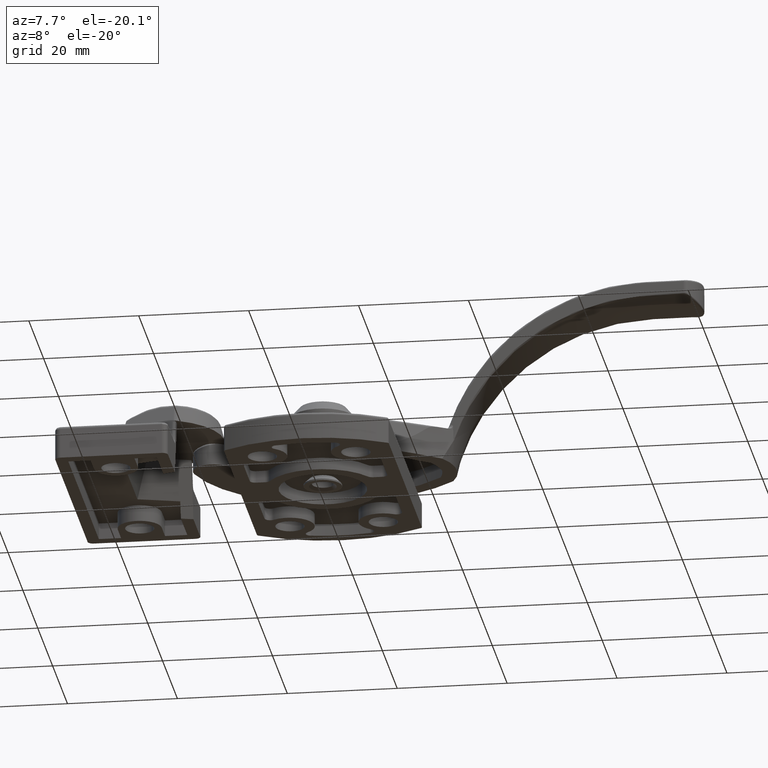
[diagram: clean part render]
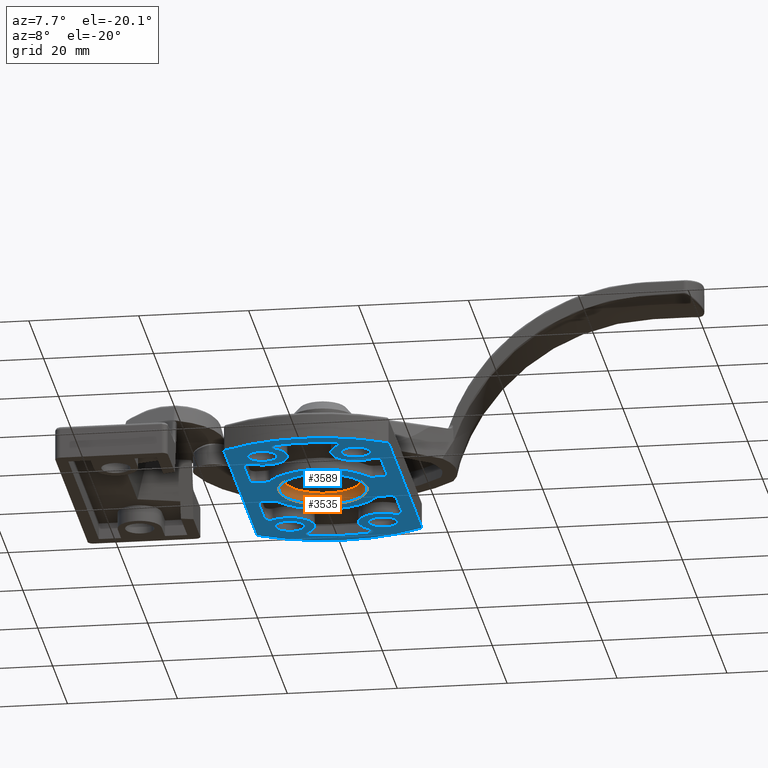
[diagram: same view with the hole feature highlighted: cylindrical wall and planar end face, labeled with their STEP entity ids]
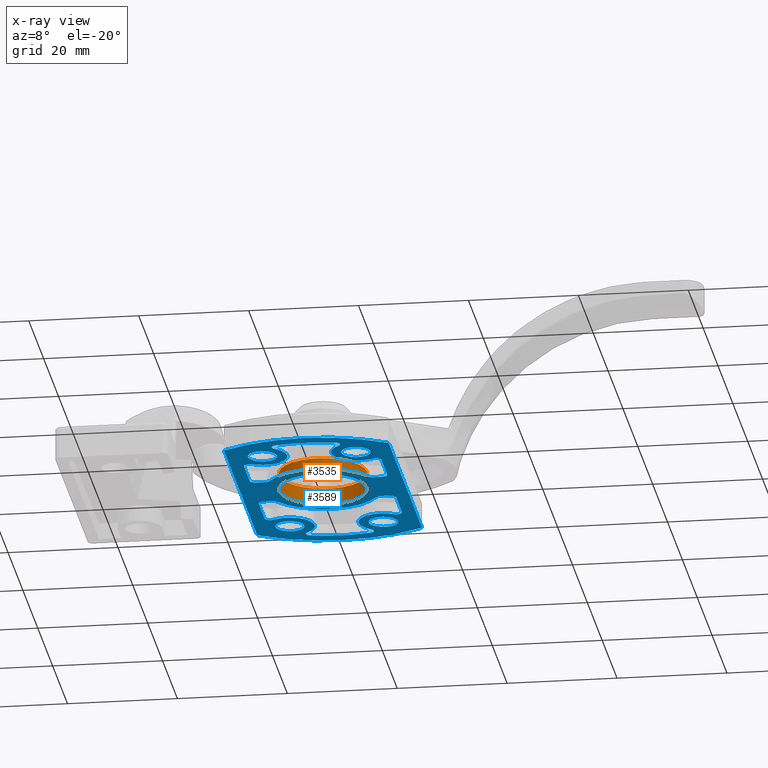
[diagram: x-ray of the same camera — body ghosted, the hole faces saturated]
A machine part, auxiliary view. The highlighted faces form one hole feature of diameter 16 mm: the cylindrical wall (entity #3535, orange) and its adjacent planar end face (entity #3589, blue) — they share a circular edge in the B-rep.
The next image is the same camera in x-ray (body ghosted, the hole faces saturated) — the bore reads through the body.
Wall:
#240=FACE_BOUND('',#1088,.T.);
#748=CYLINDRICAL_SURFACE('',#3800,8.);
#850=FACE_OUTER_BOUND('',#1087,.T.);
#1087=EDGE_LOOP('',(#2525));
#1088=EDGE_LOOP('',(#2526));
#1386=CIRCLE('',#3801,8.);
#1387=CIRCLE('',#3802,8.);
#1616=VERTEX_POINT('',#5366);
#1617=VERTEX_POINT('',#5368);
#1977=EDGE_CURVE('',#1616,#1616,#1386,.T.);
#1978=EDGE_CURVE('',#1617,#1617,#1387,.T.);
#2525=ORIENTED_EDGE('',*,*,#1977,.F.);
#2526=ORIENTED_EDGE('',*,*,#1978,.F.);
#3535=ADVANCED_FACE('',(#850,#240),#748,.F.);
#3800=AXIS2_PLACEMENT_3D('',#5365,#4301,#4302);
#3801=AXIS2_PLACEMENT_3D('',#5367,#4303,#4304);
#3802=AXIS2_PLACEMENT_3D('',#5369,#4305,#4306);
#4301=DIRECTION('center_axis',(0.,0.,1.));
#4302=DIRECTION('ref_axis',(1.,0.,0.));
#4303=DIRECTION('center_axis',(0.,0.,-1.));
#4304=DIRECTION('ref_axis',(1.,0.,0.));
#4305=DIRECTION('center_axis',(0.,0.,1.));
#4306=DIRECTION('ref_axis',(1.,0.,0.));
#5365=CARTESIAN_POINT('Origin',(0.,0.,0.));
#5366=CARTESIAN_POINT('',(-8.,9.79717439317883E-16,3.));
#5367=CARTESIAN_POINT('Origin',(0.,0.,3.));
#5368=CARTESIAN_POINT('',(-8.,9.79717439317883E-16,0.));
#5369=CARTESIAN_POINT('Origin',(0.,0.,0.));
End face:
#258=FACE_BOUND('',#1160,.T.);
#259=FACE_BOUND('',#1161,.T.);
#260=FACE_BOUND('',#1162,.T.);
#261=FACE_BOUND('',#1163,.T.);
#262=FACE_BOUND('',#1164,.T.);
#263=FACE_BOUND('',#1165,.T.);
#264=FACE_BOUND('',#1166,.T.);
#311=PLANE('',#3921);
#375=LINE('',#5351,#564);
#380=LINE('',#5392,#569);
#384=LINE('',#5404,#573);
#390=LINE('',#5428,#579);
#394=LINE('',#5440,#583);
#403=LINE('',#5483,#592);
#413=LINE('',#5531,#602);
#417=LINE('',#5543,#606);
#423=LINE('',#5565,#612);
#424=LINE('',#5616,#613);
#564=VECTOR('',#4284,44.3621460256376);
#569=VECTOR('',#4329,7.8902277713536);
#573=VECTOR('',#4341,1.68929156482571);
#579=VECTOR('',#4367,1.68929156482571);
#583=VECTOR('',#4379,7.8902277713536);
#592=VECTOR('',#4428,7.8902277713536);
#602=VECTOR('',#4482,7.8902277713536);
#606=VECTOR('',#4494,1.68929156482571);
#612=VECTOR('',#4520,1.68929156482571);
#613=VECTOR('',#4591,44.3621460256376);
#904=FACE_OUTER_BOUND('',#1159,.T.);
#1159=EDGE_LOOP('',(#2729,#2730,#2731,#2732,#2733,#2734,#2735,#2736));
#1160=EDGE_LOOP('',(#2737));
#1161=EDGE_LOOP('',(#2738,#2739,#2740,#2741,#2742,#2743,#2744,#2745,#2746,
#2747,#2748,#2749,#2750,#2751,#2752,#2753));
#1162=EDGE_LOOP('',(#2754,#2755,#2756,#2757,#2758,#2759,#2760,#2761,#2762,
#2763,#2764,#2765,#2766,#2767,#2768,#2769));
#1163=EDGE_LOOP('',(#2770));
#1164=EDGE_LOOP('',(#2771));
#1165=EDGE_LOOP('',(#2772));
#1166=EDGE_LOOP('',(#2773));
#1363=CIRCLE('',#3764,0.5);
#1367=CIRCLE('',#3770,0.5);
#1371=CIRCLE('',#3777,0.5);
#1375=CIRCLE('',#3783,0.5);
#1380=CIRCLE('',#3793,27.);
#1387=CIRCLE('',#3802,8.);
#1390=CIRCLE('',#3807,4.5);
#1392=CIRCLE('',#3810,0.999999999999999);
#1394=CIRCLE('',#3814,1.);
#1396=CIRCLE('',#3818,1.);
#1398=CIRCLE('',#3821,10.5);
#1400=CIRCLE('',#3824,1.00000000000001);
#1402=CIRCLE('',#3828,1.);
#1404=CIRCLE('',#3832,1.);
#1406=CIRCLE('',#3835,4.5);
#1408=CIRCLE('',#3838,1.00000000000002);
#1410=CIRCLE('',#3841,24.5);
#1412=CIRCLE('',#3844,0.999999999999974);
#1414=CIRCLE('',#3848,1.);
#1416=CIRCLE('',#3852,0.999999999999999);
#1418=CIRCLE('',#3855,4.5);
#1420=CIRCLE('',#3858,0.999999999999998);
#1422=CIRCLE('',#3861,24.5);
#1424=CIRCLE('',#3864,1.00000000000001);
#1426=CIRCLE('',#3867,4.5);
#1428=CIRCLE('',#3870,0.999999999999999);
#1430=CIRCLE('',#3874,0.999999999999999);
#1432=CIRCLE('',#3878,1.);
#1434=CIRCLE('',#3881,10.5);
#1436=CIRCLE('',#3884,1.);
#1439=CIRCLE('',#3891,2.65);
#1442=CIRCLE('',#3896,2.65);
#1445=CIRCLE('',#3901,2.65);
#1448=CIRCLE('',#3906,2.65);
#1452=CIRCLE('',#3919,27.);
#1594=VERTEX_POINT('',#5294);
#1595=VERTEX_POINT('',#5295);
#1599=VERTEX_POINT('',#5307);
#1600=VERTEX_POINT('',#5308);
#1604=VERTEX_POINT('',#5323);
#1605=VERTEX_POINT('',#5324);
#1609=VERTEX_POINT('',#5336);
#1610=VERTEX_POINT('',#5337);
#1617=VERTEX_POINT('',#5368);
#1621=VERTEX_POINT('',#5377);
#1622=VERTEX_POINT('',#5379);
#1624=VERTEX_POINT('',#5385);
#1626=VERTEX_POINT('',#5391);
#1628=VERTEX_POINT('',#5397);
#1630=VERTEX_POINT('',#5403);
#1632=VERTEX_POINT('',#5409);
#1634=VERTEX_POINT('',#5415);
#1636=VERTEX_POINT('',#5421);
#1638=VERTEX_POINT('',#5427);
#1640=VERTEX_POINT('',#5433);
#1642=VERTEX_POINT('',#5439);
#1644=VERTEX_POINT('',#5445);
#1646=VERTEX_POINT('',#5451);
#1648=VERTEX_POINT('',#5457);
#1650=VERTEX_POINT('',#5463);
#1653=VERTEX_POINT('',#5474);
#1654=VERTEX_POINT('',#5476);
#1656=VERTEX_POINT('',#5482);
#1658=VERTEX_POINT('',#5488);
#1660=VERTEX_POINT('',#5494);
#1662=VERTEX_POINT('',#5500);
#1664=VERTEX_POINT('',#5506);
#1666=VERTEX_POINT('',#5512);
#1668=VERTEX_POINT('',#5518);
#1670=VERTEX_POINT('',#5524);
#1672=VERTEX_POINT('',#5530);
#1674=VERTEX_POINT('',#5536);
#1676=VERTEX_POINT('',#5542);
#1678=VERTEX_POINT('',#5548);
#1680=VERTEX_POINT('',#5554);
#1682=VERTEX_POINT('',#5560);
#1685=VERTEX_POINT('',#5573);
#1688=VERTEX_POINT('',#5581);
#1691=VERTEX_POINT('',#5589);
#1694=VERTEX_POINT('',#5597);
#1941=EDGE_CURVE('',#1594,#1595,#1363,.T.);
#1947=EDGE_CURVE('',#1599,#1600,#1367,.T.);
#1955=EDGE_CURVE('',#1604,#1605,#1371,.T.);
#1961=EDGE_CURVE('',#1609,#1610,#1375,.T.);
#1970=EDGE_CURVE('',#1594,#1600,#375,.T.);
#1971=EDGE_CURVE('',#1599,#1610,#1380,.T.);
#1978=EDGE_CURVE('',#1617,#1617,#1387,.T.);
#1982=EDGE_CURVE('',#1622,#1621,#1390,.T.);
#1985=EDGE_CURVE('',#1624,#1622,#1392,.T.);
#1988=EDGE_CURVE('',#1626,#1624,#380,.T.);
#1991=EDGE_CURVE('',#1628,#1626,#1394,.T.);
#1994=EDGE_CURVE('',#1630,#1628,#384,.T.);
#1997=EDGE_CURVE('',#1632,#1630,#1396,.T.);
#2000=EDGE_CURVE('',#1634,#1632,#1398,.T.);
#2003=EDGE_CURVE('',#1636,#1634,#1400,.T.);
#2006=EDGE_CURVE('',#1638,#1636,#390,.T.);
#2009=EDGE_CURVE('',#1640,#1638,#1402,.T.);
#2012=EDGE_CURVE('',#1642,#1640,#394,.T.);
#2015=EDGE_CURVE('',#1644,#1642,#1404,.T.);
#2018=EDGE_CURVE('',#1646,#1644,#1406,.T.);
#2021=EDGE_CURVE('',#1648,#1646,#1408,.T.);
#2024=EDGE_CURVE('',#1650,#1648,#1410,.T.);
#2027=EDGE_CURVE('',#1621,#1650,#1412,.T.);
#2030=EDGE_CURVE('',#1654,#1653,#1414,.T.);
#2033=EDGE_CURVE('',#1656,#1654,#403,.T.);
#2036=EDGE_CURVE('',#1658,#1656,#1416,.T.);
#2039=EDGE_CURVE('',#1660,#1658,#1418,.T.);
#2042=EDGE_CURVE('',#1662,#1660,#1420,.T.);
#2045=EDGE_CURVE('',#1664,#1662,#1422,.T.);
#2048=EDGE_CURVE('',#1666,#1664,#1424,.T.);
#2051=EDGE_CURVE('',#1668,#1666,#1426,.T.);
#2054=EDGE_CURVE('',#1670,#1668,#1428,.T.);
#2057=EDGE_CURVE('',#1672,#1670,#413,.T.);
#2060=EDGE_CURVE('',#1674,#1672,#1430,.T.);
#2063=EDGE_CURVE('',#1676,#1674,#417,.T.);
#2066=EDGE_CURVE('',#1678,#1676,#1432,.T.);
#2069=EDGE_CURVE('',#1680,#1678,#1434,.T.);
#2072=EDGE_CURVE('',#1682,#1680,#1436,.T.);
#2075=EDGE_CURVE('',#1653,#1682,#423,.T.);
#2078=EDGE_CURVE('',#1685,#1685,#1439,.T.);
#2081=EDGE_CURVE('',#1688,#1688,#1442,.T.);
#2084=EDGE_CURVE('',#1691,#1691,#1445,.T.);
#2087=EDGE_CURVE('',#1694,#1694,#1448,.T.);
#2091=EDGE_CURVE('',#1604,#1595,#1452,.T.);
#2092=EDGE_CURVE('',#1609,#1605,#424,.T.);
#2729=ORIENTED_EDGE('',*,*,#1941,.F.);
#2730=ORIENTED_EDGE('',*,*,#1970,.T.);
#2731=ORIENTED_EDGE('',*,*,#1947,.F.);
#2732=ORIENTED_EDGE('',*,*,#1971,.T.);
#2733=ORIENTED_EDGE('',*,*,#1961,.F.);
#2734=ORIENTED_EDGE('',*,*,#2092,.T.);
#2735=ORIENTED_EDGE('',*,*,#1955,.F.);
#2736=ORIENTED_EDGE('',*,*,#2091,.T.);
#2737=ORIENTED_EDGE('',*,*,#1978,.T.);
#2738=ORIENTED_EDGE('',*,*,#1982,.T.);
#2739=ORIENTED_EDGE('',*,*,#2027,.T.);
#2740=ORIENTED_EDGE('',*,*,#2024,.T.);
#2741=ORIENTED_EDGE('',*,*,#2021,.T.);
#2742=ORIENTED_EDGE('',*,*,#2018,.T.);
#2743=ORIENTED_EDGE('',*,*,#2015,.T.);
#2744=ORIENTED_EDGE('',*,*,#2012,.T.);
#2745=ORIENTED_EDGE('',*,*,#2009,.T.);
#2746=ORIENTED_EDGE('',*,*,#2006,.T.);
#2747=ORIENTED_EDGE('',*,*,#2003,.T.);
#2748=ORIENTED_EDGE('',*,*,#2000,.T.);
#2749=ORIENTED_EDGE('',*,*,#1997,.T.);
#2750=ORIENTED_EDGE('',*,*,#1994,.T.);
#2751=ORIENTED_EDGE('',*,*,#1991,.T.);
#2752=ORIENTED_EDGE('',*,*,#1988,.T.);
#2753=ORIENTED_EDGE('',*,*,#1985,.T.);
#2754=ORIENTED_EDGE('',*,*,#2030,.T.);
#2755=ORIENTED_EDGE('',*,*,#2075,.T.);
#2756=ORIENTED_EDGE('',*,*,#2072,.T.);
#2757=ORIENTED_EDGE('',*,*,#2069,.T.);
#2758=ORIENTED_EDGE('',*,*,#2066,.T.);
#2759=ORIENTED_EDGE('',*,*,#2063,.T.);
#2760=ORIENTED_EDGE('',*,*,#2060,.T.);
#2761=ORIENTED_EDGE('',*,*,#2057,.T.);
#2762=ORIENTED_EDGE('',*,*,#2054,.T.);
#2763=ORIENTED_EDGE('',*,*,#2051,.T.);
#2764=ORIENTED_EDGE('',*,*,#2048,.T.);
#2765=ORIENTED_EDGE('',*,*,#2045,.T.);
#2766=ORIENTED_EDGE('',*,*,#2042,.T.);
#2767=ORIENTED_EDGE('',*,*,#2039,.T.);
#2768=ORIENTED_EDGE('',*,*,#2036,.T.);
#2769=ORIENTED_EDGE('',*,*,#2033,.T.);
#2770=ORIENTED_EDGE('',*,*,#2078,.T.);
#2771=ORIENTED_EDGE('',*,*,#2081,.T.);
#2772=ORIENTED_EDGE('',*,*,#2084,.T.);
#2773=ORIENTED_EDGE('',*,*,#2087,.T.);
#3589=ADVANCED_FACE('',(#904,#258,#259,#260,#261,#262,#263,#264),#311,.F.);
#3764=AXIS2_PLACEMENT_3D('',#5296,#4216,#4217);
#3770=AXIS2_PLACEMENT_3D('',#5309,#4230,#4231);
#3777=AXIS2_PLACEMENT_3D('',#5325,#4248,#4249);
#3783=AXIS2_PLACEMENT_3D('',#5338,#4262,#4263);
#3793=AXIS2_PLACEMENT_3D('',#5353,#4287,#4288);
#3802=AXIS2_PLACEMENT_3D('',#5369,#4305,#4306);
#3807=AXIS2_PLACEMENT_3D('',#5380,#4316,#4317);
#3810=AXIS2_PLACEMENT_3D('',#5386,#4323,#4324);
#3814=AXIS2_PLACEMENT_3D('',#5398,#4335,#4336);
#3818=AXIS2_PLACEMENT_3D('',#5410,#4347,#4348);
#3821=AXIS2_PLACEMENT_3D('',#5416,#4354,#4355);
#3824=AXIS2_PLACEMENT_3D('',#5422,#4361,#4362);
#3828=AXIS2_PLACEMENT_3D('',#5434,#4373,#4374);
#3832=AXIS2_PLACEMENT_3D('',#5446,#4385,#4386);
#3835=AXIS2_PLACEMENT_3D('',#5452,#4392,#4393);
#3838=AXIS2_PLACEMENT_3D('',#5458,#4399,#4400);
#3841=AXIS2_PLACEMENT_3D('',#5464,#4406,#4407);
#3844=AXIS2_PLACEMENT_3D('',#5468,#4413,#4414);
#3848=AXIS2_PLACEMENT_3D('',#5477,#4422,#4423);
#3852=AXIS2_PLACEMENT_3D('',#5489,#4434,#4435);
#3855=AXIS2_PLACEMENT_3D('',#5495,#4441,#4442);
#3858=AXIS2_PLACEMENT_3D('',#5501,#4448,#4449);
#3861=AXIS2_PLACEMENT_3D('',#5507,#4455,#4456);
#3864=AXIS2_PLACEMENT_3D('',#5513,#4462,#4463);
#3867=AXIS2_PLACEMENT_3D('',#5519,#4469,#4470);
#3870=AXIS2_PLACEMENT_3D('',#5525,#4476,#4477);
#3874=AXIS2_PLACEMENT_3D('',#5537,#4488,#4489);
#3878=AXIS2_PLACEMENT_3D('',#5549,#4500,#4501);
#3881=AXIS2_PLACEMENT_3D('',#5555,#4507,#4508);
#3884=AXIS2_PLACEMENT_3D('',#5561,#4514,#4515);
#3891=AXIS2_PLACEMENT_3D('',#5574,#4531,#4532);
#3896=AXIS2_PLACEMENT_3D('',#5582,#4541,#4542);
#3901=AXIS2_PLACEMENT_3D('',#5590,#4551,#4552);
#3906=AXIS2_PLACEMENT_3D('',#5598,#4561,#4562);
#3919=AXIS2_PLACEMENT_3D('',#5614,#4587,#4588);
#3921=AXIS2_PLACEMENT_3D('',#5617,#4592,#4593);
#4216=DIRECTION('center_axis',(0.,0.,1.));
#4217=DIRECTION('ref_axis',(-0.879536756287294,-0.47583095143089,0.));
#4230=DIRECTION('center_axis',(0.,0.,1.));
#4231=DIRECTION('ref_axis',(-0.879536756287295,0.475830951430888,0.));
#4248=DIRECTION('center_axis',(0.,0.,1.));
#4249=DIRECTION('ref_axis',(0.879536756287292,-0.475830951430893,0.));
#4262=DIRECTION('center_axis',(0.,0.,1.));
#4263=DIRECTION('ref_axis',(0.879536756287298,0.475830951430883,0.));
#4284=DIRECTION('',(-1.97813056240725E-16,1.,0.));
#4287=DIRECTION('center_axis',(0.,0.,-1.));
#4288=DIRECTION('ref_axis',(-0.555555555555556,-0.831479419283098,0.));
#4305=DIRECTION('center_axis',(0.,0.,1.));
#4306=DIRECTION('ref_axis',(1.,0.,0.));
#4316=DIRECTION('center_axis',(0.,0.,-1.));
#4317=DIRECTION('ref_axis',(-0.545454545454545,0.838140405208444,0.));
#4323=DIRECTION('center_axis',(0.,0.,1.));
#4324=DIRECTION('ref_axis',(-0.545454545454543,0.838140405208446,0.));
#4329=DIRECTION('',(0.,1.,0.));
#4335=DIRECTION('center_axis',(0.,0.,1.));
#4336=DIRECTION('ref_axis',(1.,-2.22044604925031E-15,0.));
#4341=DIRECTION('',(1.,0.,0.));
#4347=DIRECTION('center_axis',(0.,0.,1.));
#4348=DIRECTION('ref_axis',(0.,-1.,0.));
#4354=DIRECTION('center_axis',(0.,0.,-1.));
#4355=DIRECTION('ref_axis',(0.853105081319503,-0.521739130434783,0.));
#4361=DIRECTION('center_axis',(0.,0.,1.));
#4362=DIRECTION('ref_axis',(0.853105081319501,-0.521739130434787,0.));
#4367=DIRECTION('',(1.,6.57212199327891E-16,0.));
#4373=DIRECTION('center_axis',(0.,0.,1.));
#4374=DIRECTION('ref_axis',(-2.22044604925031E-15,-1.,0.));
#4379=DIRECTION('',(2.81417230730894E-16,-1.,0.));
#4385=DIRECTION('center_axis',(0.,0.,1.));
#4386=DIRECTION('ref_axis',(-1.,2.22044604925031E-15,0.));
#4392=DIRECTION('center_axis',(0.,0.,-1.));
#4393=DIRECTION('ref_axis',(-0.596741069672633,-0.802433857564573,0.));
#4399=DIRECTION('center_axis',(0.,0.,1.));
#4400=DIRECTION('ref_axis',(-0.596741069672647,-0.802433857564563,0.));
#4406=DIRECTION('center_axis',(0.,0.,1.));
#4407=DIRECTION('ref_axis',(-0.22203932411917,0.975037711344901,0.));
#4413=DIRECTION('center_axis',(0.,0.,1.));
#4414=DIRECTION('ref_axis',(0.222039324119154,0.975037711344904,0.));
#4422=DIRECTION('center_axis',(0.,0.,1.));
#4423=DIRECTION('ref_axis',(-2.22044604925031E-15,-1.,0.));
#4428=DIRECTION('',(0.,1.,0.));
#4434=DIRECTION('center_axis',(0.,0.,1.));
#4435=DIRECTION('ref_axis',(-1.,-2.22044604925032E-15,0.));
#4441=DIRECTION('center_axis',(0.,0.,-1.));
#4442=DIRECTION('ref_axis',(-0.596741069672631,-0.802433857564575,0.));
#4448=DIRECTION('center_axis',(0.,0.,1.));
#4449=DIRECTION('ref_axis',(-0.596741069672631,-0.802433857564575,0.));
#4455=DIRECTION('center_axis',(0.,0.,1.));
#4456=DIRECTION('ref_axis',(-0.222039324119172,0.9750377113449,0.));
#4462=DIRECTION('center_axis',(0.,0.,1.));
#4463=DIRECTION('ref_axis',(0.222039324119166,0.975037711344902,0.));
#4469=DIRECTION('center_axis',(0.,0.,-1.));
#4470=DIRECTION('ref_axis',(-0.545454545454545,0.838140405208444,0.));
#4476=DIRECTION('center_axis',(0.,0.,1.));
#4477=DIRECTION('ref_axis',(-0.545454545454547,0.838140405208443,0.));
#4482=DIRECTION('',(0.,-1.,0.));
#4488=DIRECTION('center_axis',(0.,0.,1.));
#4489=DIRECTION('ref_axis',(1.,0.,0.));
#4494=DIRECTION('',(-1.,-1.31442439865578E-15,0.));
#4500=DIRECTION('center_axis',(0.,0.,1.));
#4501=DIRECTION('ref_axis',(-3.33066907387546E-15,-1.,0.));
#4507=DIRECTION('center_axis',(0.,0.,-1.));
#4508=DIRECTION('ref_axis',(0.853105081319504,-0.521739130434782,0.));
#4514=DIRECTION('center_axis',(0.,0.,1.));
#4515=DIRECTION('ref_axis',(0.853105081319501,-0.521739130434786,0.));
#4520=DIRECTION('',(-1.,-3.28606099663945E-16,0.));
#4531=DIRECTION('center_axis',(0.,0.,1.));
#4532=DIRECTION('ref_axis',(1.,0.,0.));
#4541=DIRECTION('center_axis',(0.,0.,1.));
#4542=DIRECTION('ref_axis',(1.,0.,0.));
#4551=DIRECTION('center_axis',(0.,0.,1.));
#4552=DIRECTION('ref_axis',(1.,0.,0.));
#4561=DIRECTION('center_axis',(0.,0.,1.));
#4562=DIRECTION('ref_axis',(1.,0.,0.));
#4587=DIRECTION('center_axis',(0.,0.,-1.));
#4588=DIRECTION('ref_axis',(0.555555555555555,0.831479419283098,0.));
#4591=DIRECTION('',(0.,-1.,0.));
#4592=DIRECTION('center_axis',(0.,0.,1.));
#4593=DIRECTION('ref_axis',(1.,0.,0.));
#5294=CARTESIAN_POINT('',(-15.,-22.1810730128188,0.));
#5295=CARTESIAN_POINT('',(-14.7735849056604,-22.5995838243815,0.));
#5296=CARTESIAN_POINT('Origin',(-14.5,-22.1810730128188,0.));
#5307=CARTESIAN_POINT('',(-14.7735849056604,22.5995838243815,0.));
#5308=CARTESIAN_POINT('',(-15.,22.1810730128188,0.));
#5309=CARTESIAN_POINT('Origin',(-14.5,22.1810730128188,0.));
#5323=CARTESIAN_POINT('',(14.7735849056604,-22.5995838243815,0.));
#5324=CARTESIAN_POINT('',(15.,-22.1810730128188,0.));
#5325=CARTESIAN_POINT('Origin',(14.5,-22.1810730128188,0.));
#5336=CARTESIAN_POINT('',(15.,22.1810730128188,0.));
#5337=CARTESIAN_POINT('',(14.7735849056604,22.5995838243815,0.));
#5338=CARTESIAN_POINT('Origin',(14.5,22.1810730128188,0.));
#5351=CARTESIAN_POINT('',(-15.,-22.4499443206437,0.));
#5353=CARTESIAN_POINT('Origin',(0.,0.,0.));
#5368=CARTESIAN_POINT('',(-8.,9.79717439317883E-16,0.));
#5369=CARTESIAN_POINT('Origin',(0.,0.,0.));
#5377=CARTESIAN_POINT('',(5.81466518647318,22.1109523590406,0.));
#5379=CARTESIAN_POINT('',(10.9545454545455,14.728368176562,0.));
#5380=CARTESIAN_POINT('Origin',(8.5,18.5,0.));
#5385=CARTESIAN_POINT('',(12.5,13.8902277713536,0.));
#5386=CARTESIAN_POINT('Origin',(11.5,13.8902277713536,0.));
#5391=CARTESIAN_POINT('',(12.5,6.,0.));
#5392=CARTESIAN_POINT('',(12.5,6.94511388567678,0.));
#5397=CARTESIAN_POINT('',(11.5,5.,0.));
#5398=CARTESIAN_POINT('Origin',(11.5,6.,0.));
#5403=CARTESIAN_POINT('',(9.81070843517429,5.,0.));
#5404=CARTESIAN_POINT('',(5.75,5.,0.));
#5409=CARTESIAN_POINT('',(8.95760335385479,5.47826086956522,0.));
#5410=CARTESIAN_POINT('Origin',(9.81070843517429,6.,0.));
#5415=CARTESIAN_POINT('',(-8.95760335385479,5.47826086956522,0.));
#5416=CARTESIAN_POINT('Origin',(0.,0.,0.));
#5421=CARTESIAN_POINT('',(-9.81070843517429,5.,0.));
#5422=CARTESIAN_POINT('Origin',(-9.8107084351743,6.00000000000001,0.));
#5427=CARTESIAN_POINT('',(-11.5,5.,0.));
#5428=CARTESIAN_POINT('',(-4.90535421758715,5.,0.));
#5433=CARTESIAN_POINT('',(-12.5,6.,0.));
#5434=CARTESIAN_POINT('Origin',(-11.5,6.,0.));
#5439=CARTESIAN_POINT('',(-12.5,13.8902277713536,0.));
#5440=CARTESIAN_POINT('',(-12.5,3.,0.));
#5445=CARTESIAN_POINT('',(-10.9545454545455,14.728368176562,0.));
#5446=CARTESIAN_POINT('Origin',(-11.5,13.8902277713536,0.));
#5451=CARTESIAN_POINT('',(-5.81466518647315,22.1109523590406,0.));
#5452=CARTESIAN_POINT('Origin',(-8.5,18.5,0.));
#5457=CARTESIAN_POINT('',(-5.43996344091967,23.8884239279501,0.));
#5458=CARTESIAN_POINT('Origin',(-5.21792411680049,22.9133862166052,0.));
#5463=CARTESIAN_POINT('',(5.43996344091975,23.8884239279501,0.));
#5464=CARTESIAN_POINT('Origin',(0.,0.,0.));
#5468=CARTESIAN_POINT('Origin',(5.2179241168006,22.9133862166052,0.));
#5474=CARTESIAN_POINT('',(11.5,-5.,0.));
#5476=CARTESIAN_POINT('',(12.5,-6.,0.));
#5477=CARTESIAN_POINT('Origin',(11.5,-6.,0.));
#5482=CARTESIAN_POINT('',(12.5,-13.8902277713536,0.));
#5483=CARTESIAN_POINT('',(12.5,-3.,0.));
#5488=CARTESIAN_POINT('',(10.9545454545455,-14.728368176562,0.));
#5489=CARTESIAN_POINT('Origin',(11.5,-13.8902277713536,0.));
#5494=CARTESIAN_POINT('',(5.81466518647316,-22.1109523590406,0.));
#5495=CARTESIAN_POINT('Origin',(8.5,-18.5,0.));
#5500=CARTESIAN_POINT('',(5.4399634409197,-23.8884239279501,0.));
#5501=CARTESIAN_POINT('Origin',(5.21792411680053,-22.9133862166052,0.));
#5506=CARTESIAN_POINT('',(-5.43996344091967,-23.8884239279501,0.));
#5507=CARTESIAN_POINT('Origin',(0.,0.,0.));
#5512=CARTESIAN_POINT('',(-5.81466518647316,-22.1109523590406,0.));
#5513=CARTESIAN_POINT('Origin',(-5.21792411680051,-22.9133862166052,0.));
#5518=CARTESIAN_POINT('',(-10.9545454545455,-14.728368176562,0.));
#5519=CARTESIAN_POINT('Origin',(-8.5,-18.5,0.));
#5524=CARTESIAN_POINT('',(-12.5,-13.8902277713536,0.));
#5525=CARTESIAN_POINT('Origin',(-11.5,-13.8902277713536,0.));
#5530=CARTESIAN_POINT('',(-12.5,-6.,0.));
#5531=CARTESIAN_POINT('',(-12.5,-6.94511388567678,0.));
#5536=CARTESIAN_POINT('',(-11.5,-5.,0.));
#5537=CARTESIAN_POINT('Origin',(-11.5,-6.,0.));
#5542=CARTESIAN_POINT('',(-9.81070843517429,-5.,0.));
#5543=CARTESIAN_POINT('',(-5.74999999999999,-4.99999999999999,0.));
#5548=CARTESIAN_POINT('',(-8.95760335385479,-5.47826086956522,0.));
#5549=CARTESIAN_POINT('Origin',(-9.81070843517429,-6.,0.));
#5554=CARTESIAN_POINT('',(8.95760335385479,-5.47826086956522,0.));
#5555=CARTESIAN_POINT('Origin',(0.,0.,0.));
#5560=CARTESIAN_POINT('',(9.81070843517429,-5.,0.));
#5561=CARTESIAN_POINT('Origin',(9.81070843517429,-6.,0.));
#5565=CARTESIAN_POINT('',(4.90535421758715,-5.,0.));
#5573=CARTESIAN_POINT('',(5.85,-18.5,0.));
#5574=CARTESIAN_POINT('Origin',(8.5,-18.5,0.));
#5581=CARTESIAN_POINT('',(-11.15,18.5,0.));
#5582=CARTESIAN_POINT('Origin',(-8.5,18.5,0.));
#5589=CARTESIAN_POINT('',(5.85,18.5,0.));
#5590=CARTESIAN_POINT('Origin',(8.5,18.5,0.));
#5597=CARTESIAN_POINT('',(-11.15,-18.5,0.));
#5598=CARTESIAN_POINT('Origin',(-8.5,-18.5,0.));
#5614=CARTESIAN_POINT('Origin',(0.,0.,0.));
#5616=CARTESIAN_POINT('',(15.,22.4499443206436,0.));
#5617=CARTESIAN_POINT('Origin',(6.91707801194619E-16,2.22044604925031E-15,
0.));